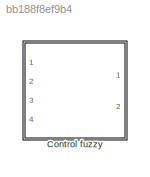
MODEL slx_bb188f8ef9b4
KIND model
CONFIG AbsTol = auto
CONFIG EnableMultiTasking = off
CONFIG FixedStep = auto
CONFIG MaxStep = auto
CONFIG MinStep = auto
CONFIG RelTol = 1e-3
CONFIG SampleTimeConstraint = Unconstrained
CONFIG Solver = VariableStepAuto
CONFIG SolverName = VariableStepAuto
CONFIG StartTime = 0.0
CONFIG StopTime = 10.0
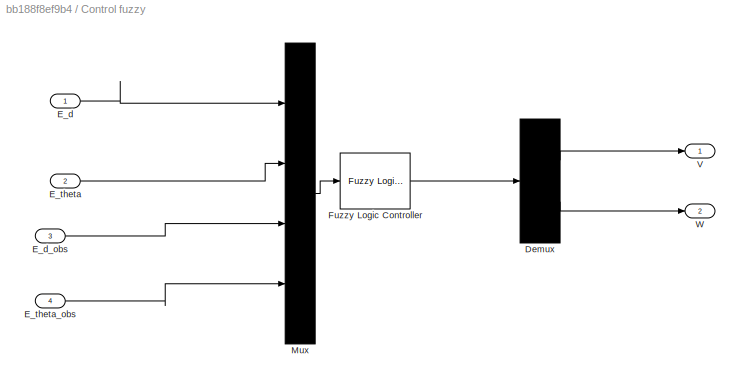
BLOCK [SubSystem] Control fuzzy
  Ports = [4, 2]
  RequestExecContextInheritance = off
BLOCK [Demux] Control fuzzy/Demux
  DisplayOption = bar
  Outputs = 2
  Ports = [1, 2]
BLOCK [Inport] Control fuzzy/E_d 
  IconDisplay = Port number
BLOCK [Inport] Control fuzzy/E_d_obs
  IconDisplay = Port number
  Port = 3
BLOCK [Inport] Control fuzzy/E_theta
  IconDisplay = Port number
  Port = 2
BLOCK [Inport] Control fuzzy/E_theta_obs
  IconDisplay = Port number
  Port = 4
BLOCK [Reference] Control fuzzy/Fuzzy Logic Controller  REF=fuzblock/Fuzzy Logic   (lib defined in mdl_858b3b3e7478)
Controller
  Ports = [1, 1]
  SourceBlock = fuzblock/Fuzzy Logic \nController
  SourceProductBaseCode = FL
  SourceProductName = Fuzzy Logic Toolbox
  SourceType = Fuzzy Inference System
BLOCK [Mux] Control fuzzy/Mux
  DisplayOption = bar
  Ports = [4, 1]
BLOCK [Outport] Control fuzzy/V
  IconDisplay = Port number
BLOCK [Outport] Control fuzzy/W 
  IconDisplay = Port number
  Port = 2
LINE Control fuzzy/Demux:1 -> Control fuzzy/V:1
LINE Control fuzzy/Demux:2 -> Control fuzzy/W :1
LINE Control fuzzy/E_d :1 -> Control fuzzy/Mux:1
LINE Control fuzzy/E_d_obs:1 -> Control fuzzy/Mux:3
LINE Control fuzzy/E_theta:1 -> Control fuzzy/Mux:2
LINE Control fuzzy/E_theta_obs:1 -> Control fuzzy/Mux:4
LINE Control fuzzy/Fuzzy Logic Controller:1 -> Control fuzzy/Demux:1
LINE Control fuzzy/Mux:1 -> Control fuzzy/Fuzzy Logic Controller:1
